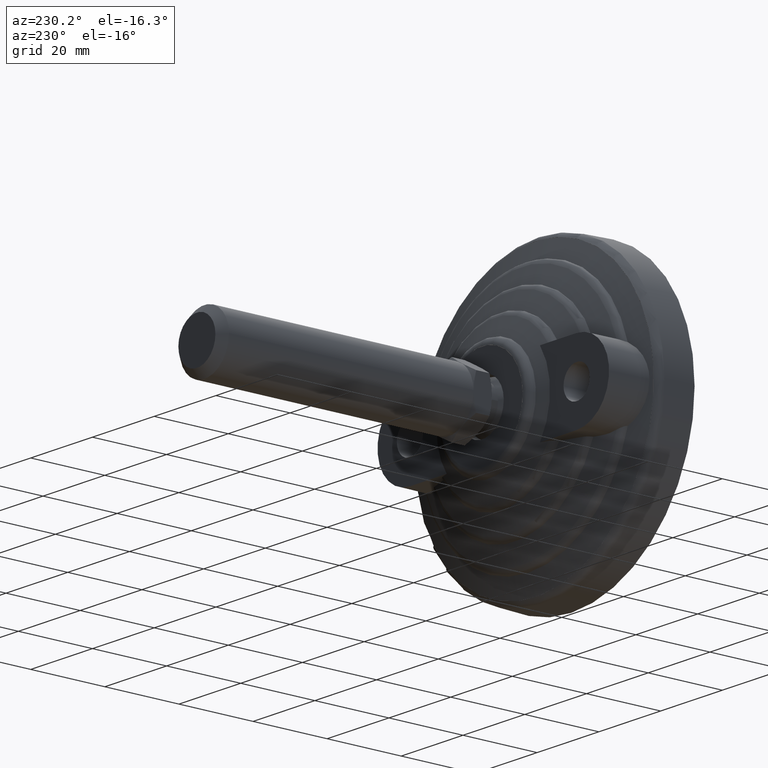
[diagram: clean part render]
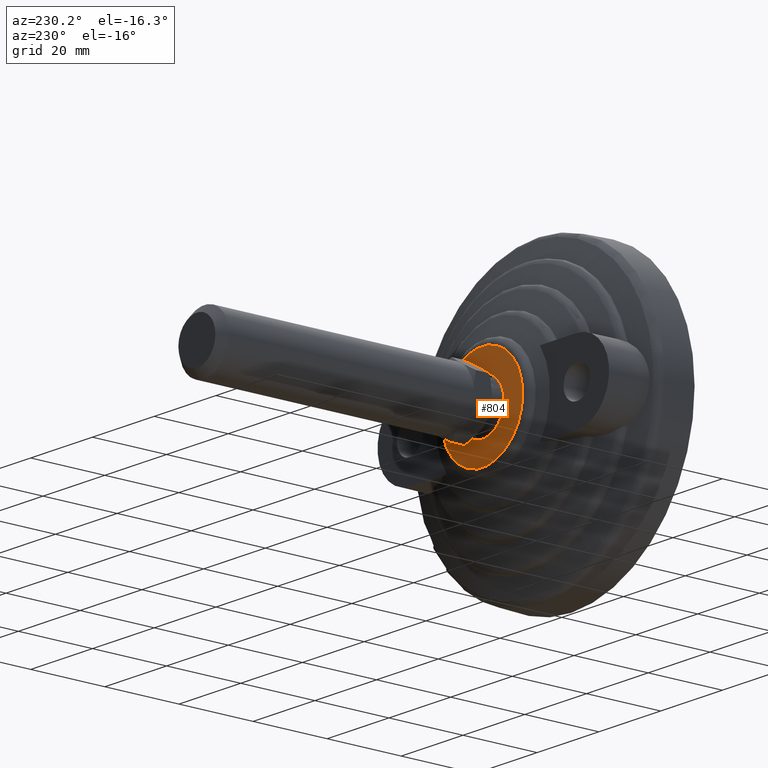
[diagram: same view with one face highlighted and labeled with its STEP entity id]
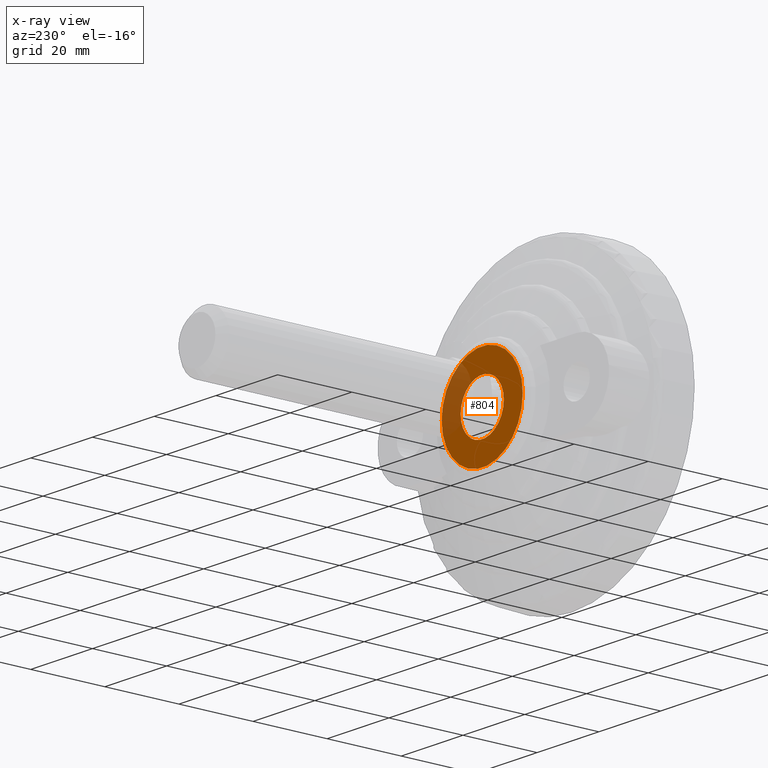
[diagram: x-ray of the same camera — body ghosted, the highlighted face saturated]
A machine part, auxiliary view. The second image highlights one B-rep face of the part: STEP entity #804.
The next image is the same camera in x-ray: the body ghosted, the highlighted face saturated — about 22% of this face is hidden behind the body in this view.
In plain terms, the highlighted planar face has unit normal (0, 1, 0).
Its self-contained STEP definition (entity closure, byte-faithful):
#29=FACE_BOUND('',#195,.T.);
#41=PLANE('',#951);
#146=FACE_OUTER_BOUND('',#194,.T.);
#194=EDGE_LOOP('',(#688));
#195=EDGE_LOOP('',(#689));
#285=CIRCLE('',#904,13.13);
#303=CIRCLE('',#932,7.);
#333=VERTEX_POINT('',#1289);
#363=VERTEX_POINT('',#1483);
#422=EDGE_CURVE('',#333,#333,#285,.T.);
#459=EDGE_CURVE('',#363,#363,#303,.T.);
#688=ORIENTED_EDGE('',*,*,#422,.F.);
#689=ORIENTED_EDGE('',*,*,#459,.T.);
#804=ADVANCED_FACE('',(#146,#29),#41,.T.);
#904=AXIS2_PLACEMENT_3D('',#1291,#1027,#1028);
#932=AXIS2_PLACEMENT_3D('',#1484,#1086,#1087);
#951=AXIS2_PLACEMENT_3D('',#1571,#1133,#1134);
#1027=DIRECTION('center_axis',(0.,-1.,0.));
#1028=DIRECTION('ref_axis',(-1.,0.,0.));
#1086=DIRECTION('center_axis',(0.,-1.,0.));
#1087=DIRECTION('ref_axis',(1.,0.,0.));
#1133=DIRECTION('center_axis',(0.,1.,0.));
#1134=DIRECTION('ref_axis',(0.,0.,1.));
#1289=CARTESIAN_POINT('',(13.13,24.,1.60790814256878E-15));
#1291=CARTESIAN_POINT('Origin',(0.,24.,0.));
#1483=CARTESIAN_POINT('',(-7.,24.,8.57224447675664E-16));
#1484=CARTESIAN_POINT('Origin',(0.,24.,0.));
#1571=CARTESIAN_POINT('Origin',(-6.565,24.,-1.60790814256878E-15));